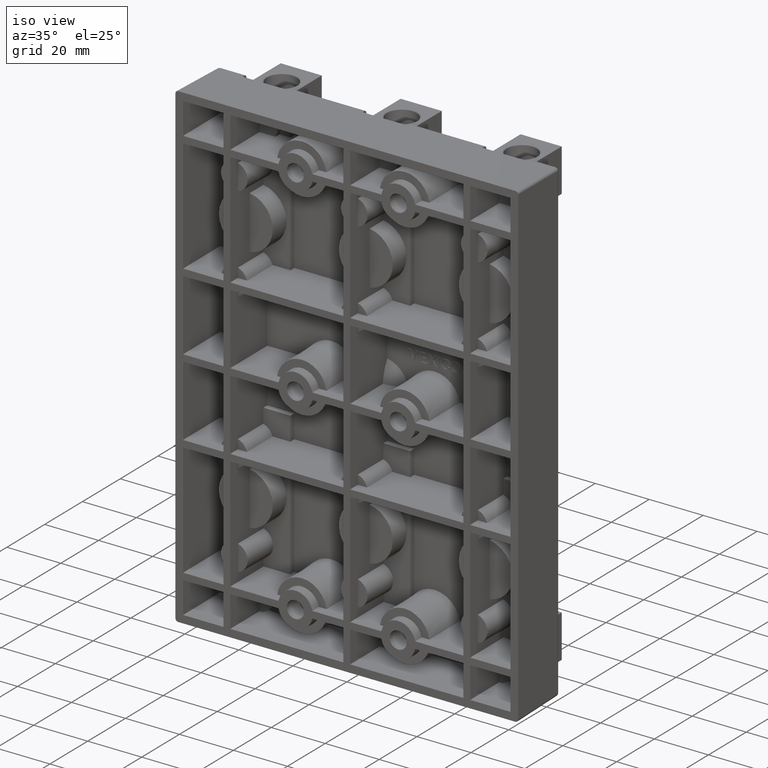
[diagram: clean part render]
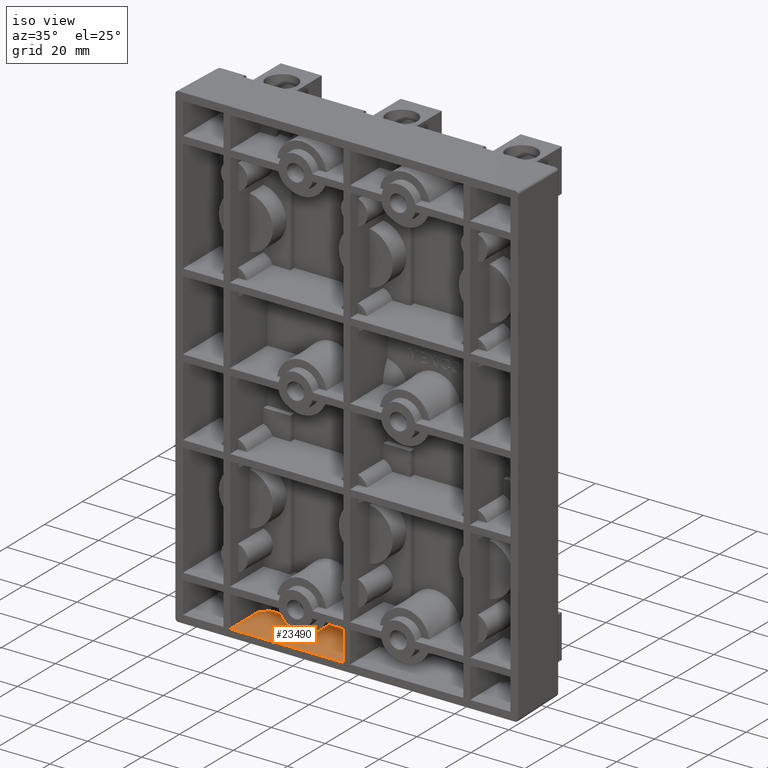
[diagram: same view with one face highlighted and labeled with its STEP entity id]
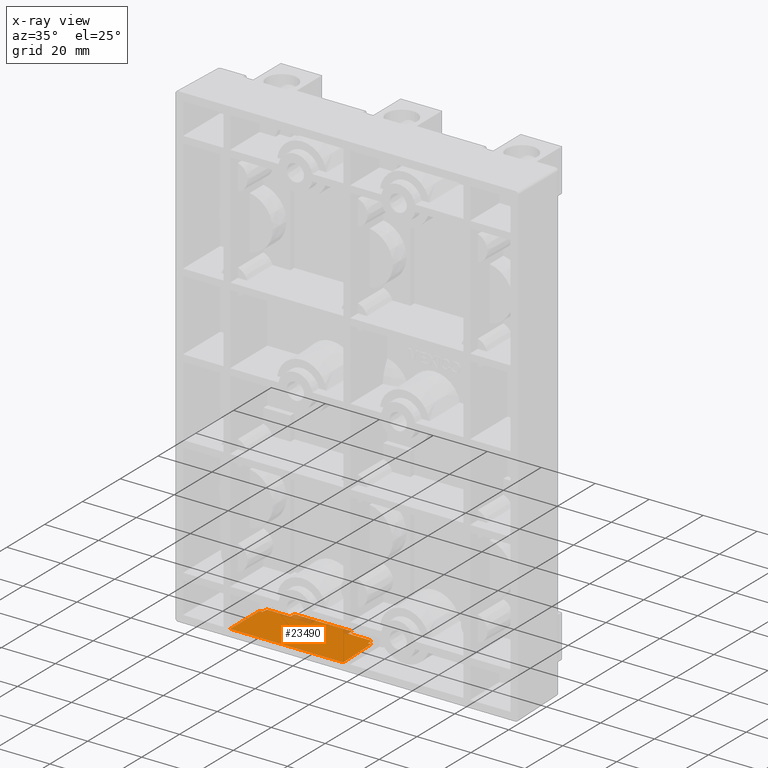
[diagram: x-ray of the same camera — body ghosted, the highlighted face saturated]
A machine part, iso view. The second image highlights one B-rep face of the part: STEP entity #23490.
The next image is the same camera in x-ray: the body ghosted, the highlighted face saturated — about 4% of this face is hidden behind the body in this view.
In plain terms, the highlighted planar face has unit normal (-0, -0.0175, 0.9998).
Its self-contained STEP definition (entity closure, byte-faithful):
#91 = DIRECTION ( 'NONE',  ( -0.01744974916068221500, -0.9996954598818874600, -0.01744974916068221500 ) ) ;
#245 = VERTEX_POINT ( 'NONE', #2709 ) ;
#559 = VERTEX_POINT ( 'NONE', #1883 ) ;
#804 = VERTEX_POINT ( 'NONE', #36964 ) ;
#833 = LINE ( 'NONE', #25641, #43291 ) ;
#1155 = VECTOR ( 'NONE', #31345, 39.37007874015748100 ) ;
#1194 = VERTEX_POINT ( 'NONE', #38972 ) ;
#1198 = CARTESIAN_POINT ( 'NONE',  ( 2.499999999999984900, 0.7550000000000000000, -3.374999999999984500 ) ) ;
#1883 = CARTESIAN_POINT ( 'NONE',  ( -1.700678574020794800, -2.088663051067877500E-017, -3.388178574020788100 ) ) ;
#2083 = LINE ( 'NONE', #3773, #20353 ) ;
#2709 = CARTESIAN_POINT ( 'NONE',  ( -0.4549999999999982900, 0.6750000000000000400, -3.376396405194241400 ) ) ;
#2928 = CARTESIAN_POINT ( 'NONE',  ( 2.499999999999984900, 0.5950000000000000800, -3.377792810388499300 ) ) ;
#3634 = ORIENTED_EDGE ( 'NONE', *, *, #13355, .T. ) ;
#3773 = CARTESIAN_POINT ( 'NONE',  ( -0.4549999999999982900, 0.7550000000000000000, -3.374999999999984500 ) ) ;
#3811 = FACE_OUTER_BOUND ( 'NONE', #13742, .T. ) ;
#4151 = CARTESIAN_POINT ( 'NONE',  ( -0.1044931374435733900, 0.5949999999999997500, -3.377792810388499300 ) ) ;
#4778 = LINE ( 'NONE', #41282, #40230 ) ;
#5195 = CARTESIAN_POINT ( 'NONE',  ( -1.294999999999991500, 0.6750000000000000400, -3.376396405194242300 ) ) ;
#6190 = CARTESIAN_POINT ( 'NONE',  ( -1.294999999999991500, 0.7550000000000000000, -3.374999999999984500 ) ) ;
#6267 = VECTOR ( 'NONE', #26703, 39.37007874015748100 ) ;
#6316 = CARTESIAN_POINT ( 'NONE',  ( -0.1125606853497806700, 0.6750000000000004900, -3.376396405194241900 ) ) ;
#7767 = VERTEX_POINT ( 'NONE', #40069 ) ;
#7781 = CARTESIAN_POINT ( 'NONE',  ( -0.1044931374435733900, 0.5949999999999997500, -3.377792810388499300 ) ) ;
#8977 = VERTEX_POINT ( 'NONE', #43374 ) ;
#9824 = ORIENTED_EDGE ( 'NONE', *, *, #27698, .T. ) ;
#9828 = EDGE_CURVE ( 'NONE', #20866, #245, #27480, .T. ) ;
#9938 = CARTESIAN_POINT ( 'NONE',  ( 2.499999999999984900, 0.5950000000000000800, -3.377792810388499300 ) ) ;
#10139 = CARTESIAN_POINT ( 'NONE',  ( -1.294999999999991500, 0.7550000000000000000, -3.374999999999984500 ) ) ;
#10744 = CARTESIAN_POINT ( 'NONE',  ( 2.499999999999984900, 0.6750000000000000400, -3.376396405194241900 ) ) ;
#11037 = CARTESIAN_POINT ( 'NONE',  ( -0.1125606853497806700, 0.6750000000000004900, -3.376396405194241900 ) ) ;
#11538 = CARTESIAN_POINT ( 'NONE',  ( -1.640128497284592600, 0.6473421754447027400, -3.376879174317628100 ) ) ;
#12074 = LINE ( 'NONE', #2928, #38484 ) ;
#12637 = VECTOR ( 'NONE', #25330, 39.37007874015748100 ) ;
#12891 = LINE ( 'NONE', #19373, #41423 ) ;
#13105 = DIRECTION ( 'NONE',  ( -1.000000000000000000, 1.819200865238526000E-051, -1.042219477681598600E-049 ) ) ;
#13355 = EDGE_CURVE ( 'NONE', #7767, #1194, #27168, .T. ) ;
#13742 = EDGE_LOOP ( 'NONE', ( #41530, #18936, #3634, #36709, #9824, #14439, #18702, #28389, #40904, #36886, #27633, #35846 ) ) ;
#14055 = CARTESIAN_POINT ( 'NONE',  ( 2.499999999999984900, 0.6750000000000000400, -3.376396405194241900 ) ) ;
#14439 = ORIENTED_EDGE ( 'NONE', *, *, #40958, .F. ) ;
#15164 = PLANE ( 'NONE',  #17308 ) ;
#16934 = VECTOR ( 'NONE', #21111, 39.37007874015748100 ) ;
#17308 = AXIS2_PLACEMENT_3D ( 'NONE', #1198, #18612, #42667 ) ;
#18423 = EDGE_CURVE ( 'NONE', #31067, #42125, #41718, .T. ) ;
#18612 = DIRECTION ( 'NONE',  ( -1.042378236935956500E-049, -0.01745240643728345300, 0.9998476951563912700 ) ) ;
#18702 = ORIENTED_EDGE ( 'NONE', *, *, #28924, .T. ) ;
#18811 = EDGE_CURVE ( 'NONE', #39777, #31067, #37961, .T. ) ;
#18936 = ORIENTED_EDGE ( 'NONE', *, *, #41685, .T. ) ;
#19192 = EDGE_CURVE ( 'NONE', #42125, #34351, #42201, .T. ) ;
#19373 = CARTESIAN_POINT ( 'NONE',  ( -0.05970718961148394100, 0.5950000000000000800, -3.377792810388499300 ) ) ;
#20229 = B_SPLINE_CURVE_WITH_KNOTS ( 'NONE', 3,
 ( #35625, #11538, #42498, #21898 ),
 .UNSPECIFIED., .F., .F.,
 ( 4, 4 ),
 ( 0.0000000000000000000, 1.000000000000000000 ),
 .UNSPECIFIED. ) ;
#20353 = VECTOR ( 'NONE', #27740, 39.37007874015748100 ) ;
#20866 = VERTEX_POINT ( 'NONE', #6316 ) ;
#21111 = DIRECTION ( 'NONE',  ( -1.000000000000000000, 1.819200865238526000E-051, -1.042219477681598600E-049 ) ) ;
#21898 = CARTESIAN_POINT ( 'NONE',  ( -1.645506862556418000, 0.5949999999999997500, -3.377792810388499300 ) ) ;
#23490 = ADVANCED_FACE ( 'NONE', ( #3811 ), #15164, .T. ) ;
#24522 = EDGE_CURVE ( 'NONE', #1194, #559, #4778, .T. ) ;
#24656 = CARTESIAN_POINT ( 'NONE',  ( -0.1071823200799748200, 0.6206755087779978200, -3.377344642715714800 ) ) ;
#24860 = CARTESIAN_POINT ( 'NONE',  ( -1.637439314650210200, 0.6750000000000004900, -3.376396405194241900 ) ) ;
#25330 = DIRECTION ( 'NONE',  ( -1.000000000000000000, 1.819200865238526000E-051, -1.042219477681598600E-049 ) ) ;
#25624 = EDGE_CURVE ( 'NONE', #245, #39777, #2083, .T. ) ;
#25641 = CARTESIAN_POINT ( 'NONE',  ( 2.499999999999984900, 0.0000000000000000000, -3.388178574020788600 ) ) ;
#26093 = VECTOR ( 'NONE', #37426, 39.37007874015748100 ) ;
#26703 = DIRECTION ( 'NONE',  ( 0.0000000000000000000, -0.9998476951563912700, -0.01745240643728345300 ) ) ;
#27168 = LINE ( 'NONE', #9938, #26093 ) ;
#27480 = LINE ( 'NONE', #10744, #1155 ) ;
#27633 = ORIENTED_EDGE ( 'NONE', *, *, #18811, .T. ) ;
#27698 = EDGE_CURVE ( 'NONE', #559, #804, #833, .T. ) ;
#27740 = DIRECTION ( 'NONE',  ( -0.0000000000000000000, 0.9998476951563912700, 0.01745240643728345300 ) ) ;
#28389 = ORIENTED_EDGE ( 'NONE', *, *, #38174, .T. ) ;
#28924 = EDGE_CURVE ( 'NONE', #8977, #36295, #12074, .T. ) ;
#29838 = B_SPLINE_CURVE_WITH_KNOTS ( 'NONE', 3,
 ( #4151, #24656, #31614, #11037 ),
 .UNSPECIFIED., .F., .F.,
 ( 4, 4 ),
 ( 0.0000000000000000000, 1.000000000000000000 ),
 .UNSPECIFIED. ) ;
#31067 = VERTEX_POINT ( 'NONE', #10139 ) ;
#31345 = DIRECTION ( 'NONE',  ( -1.000000000000000000, 1.819200865238526000E-051, -1.042219477681598600E-049 ) ) ;
#31614 = CARTESIAN_POINT ( 'NONE',  ( -0.1098715027153946700, 0.6473421754446645500, -3.376879174317628500 ) ) ;
#32746 = DIRECTION ( 'NONE',  ( 1.000000000000000000, -1.819200865238526000E-051, 1.042219477681598600E-049 ) ) ;
#34351 = VERTEX_POINT ( 'NONE', #24860 ) ;
#35620 = CARTESIAN_POINT ( 'NONE',  ( 2.499999999999984900, 0.7550000000000000000, -3.374999999999984500 ) ) ;
#35625 = CARTESIAN_POINT ( 'NONE',  ( -1.637439314650210200, 0.6750000000000004900, -3.376396405194241900 ) ) ;
#35846 = ORIENTED_EDGE ( 'NONE', *, *, #18423, .T. ) ;
#36295 = VERTEX_POINT ( 'NONE', #7781 ) ;
#36709 = ORIENTED_EDGE ( 'NONE', *, *, #24522, .T. ) ;
#36886 = ORIENTED_EDGE ( 'NONE', *, *, #25624, .T. ) ;
#36964 = CARTESIAN_POINT ( 'NONE',  ( -0.04932142597919451200, 2.063286375456543800E-017, -3.388178574020788600 ) ) ;
#37011 = CARTESIAN_POINT ( 'NONE',  ( -0.4549999999999982900, 0.7550000000000000000, -3.374999999999984500 ) ) ;
#37426 = DIRECTION ( 'NONE',  ( -1.000000000000000000, 1.819200865238526000E-051, -1.042219477681598600E-049 ) ) ;
#37961 = LINE ( 'NONE', #35620, #12637 ) ;
#38174 = EDGE_CURVE ( 'NONE', #36295, #20866, #29838, .T. ) ;
#38484 = VECTOR ( 'NONE', #13105, 39.37007874015748100 ) ;
#38972 = CARTESIAN_POINT ( 'NONE',  ( -1.690292810388505500, 0.5950000000000000800, -3.377792810388499300 ) ) ;
#39777 = VERTEX_POINT ( 'NONE', #37011 ) ;
#40069 = CARTESIAN_POINT ( 'NONE',  ( -1.645506862556418000, 0.5949999999999997500, -3.377792810388499300 ) ) ;
#40230 = VECTOR ( 'NONE', #91, 39.37007874015748900 ) ;
#40904 = ORIENTED_EDGE ( 'NONE', *, *, #9828, .T. ) ;
#40958 = EDGE_CURVE ( 'NONE', #8977, #804, #12891, .T. ) ;
#41282 = CARTESIAN_POINT ( 'NONE',  ( -1.690292810388505500, 0.5950000000000000800, -3.377792810388499300 ) ) ;
#41423 = VECTOR ( 'NONE', #43583, 39.37007874015748900 ) ;
#41530 = ORIENTED_EDGE ( 'NONE', *, *, #19192, .T. ) ;
#41685 = EDGE_CURVE ( 'NONE', #34351, #7767, #20229, .T. ) ;
#41718 = LINE ( 'NONE', #6190, #6267 ) ;
#42125 = VERTEX_POINT ( 'NONE', #5195 ) ;
#42201 = LINE ( 'NONE', #14055, #16934 ) ;
#42498 = CARTESIAN_POINT ( 'NONE',  ( -1.642817679920012700, 0.6206755087780361200, -3.377344642715713900 ) ) ;
#42667 = DIRECTION ( 'NONE',  ( 0.0000000000000000000, -0.9998476951563912700, -0.01745240643728345300 ) ) ;
#43291 = VECTOR ( 'NONE', #32746, 39.37007874015748100 ) ;
#43374 = CARTESIAN_POINT ( 'NONE',  ( -0.05970718961148386400, 0.5950000000000000800, -3.377792810388499300 ) ) ;
#43583 = DIRECTION ( 'NONE',  ( 0.01744974916068263100, -0.9996954598818874600, -0.01744974916068221500 ) ) ;